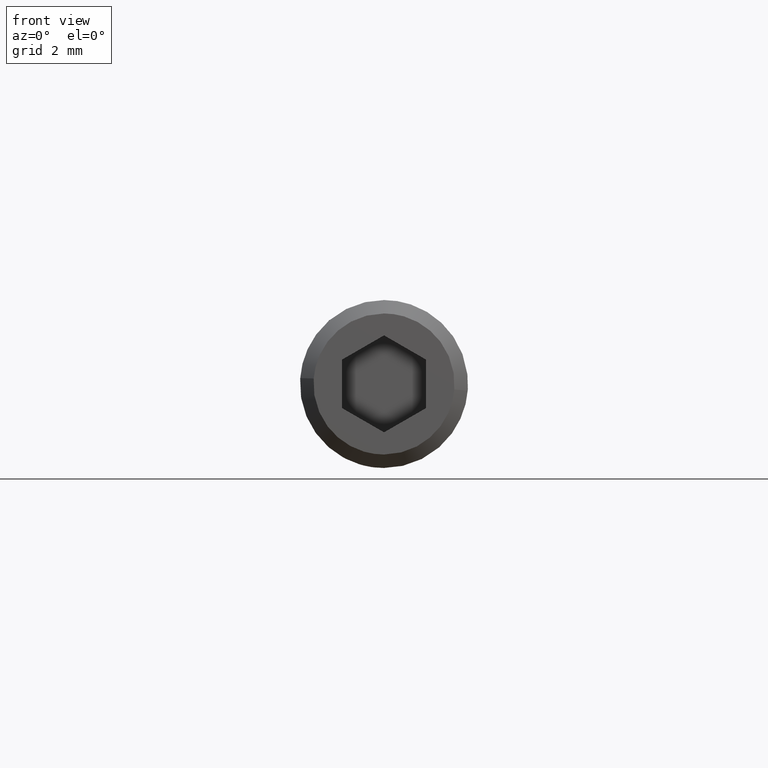
[diagram: clean part render]
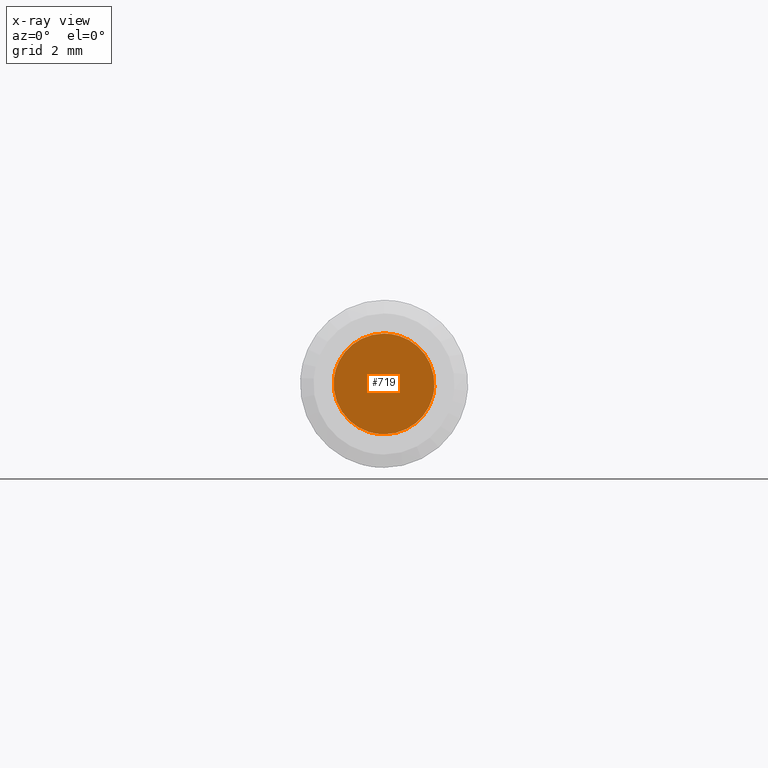
[diagram: x-ray — body ghosted, one internal face saturated and labeled with its STEP entity id]
A machine part, front view, then the same camera in x-ray: the body is ghosted and one INTERNAL B-rep face — a face not visible from any outside direction — is saturated and labeled: STEP entity #719.
In plain terms, the highlighted face is a freeform B-spline surface patch.
Its self-contained STEP definition (entity closure, byte-faithful):
#66=CARTESIAN_POINT('',(-1.489514289544436,-3.0,0.177051351994086));
#67=VERTEX_POINT('',#66);
#68=CARTESIAN_POINT('',(0.0,-3.0,-1.500000000000000));
#69=VERTEX_POINT('',#68);
#70=CARTESIAN_POINT('',(-1.489514289544436,-3.000000000000000,0.177051351994086));
#71=CARTESIAN_POINT('',(-1.500000000000000,-2.999999999999999,0.088836179486908));
#72=CARTESIAN_POINT('',(-1.500000000000000,-3.0,0.0));
#73=CARTESIAN_POINT('',(-1.500000000000000,-3.0,-1.500000000000000));
#74=CARTESIAN_POINT('',(0.0,-3.0,-1.500000000000000));
#82=(BOUNDED_CURVE()B_SPLINE_CURVE(2,(#70,#71,#72,#73,#74),.UNSPECIFIED.,.F.,.U.)B_SPLINE_CURVE_WITH_KNOTS((3,2,3),(0.229562473513614,0.250000000000000,0.500000000000000),.UNSPECIFIED.)CURVE()GEOMETRIC_REPRESENTATION_ITEM()RATIONAL_B_SPLINE_CURVE((0.956026754183906,0.976055948331269,1.0,0.707106781186548,1.0))REPRESENTATION_ITEM(''));
#83=EDGE_CURVE('',#67,#69,#82,.T.);
#85=CARTESIAN_POINT('',(1.497202197631061,-3.0,-0.091572809330721));
#86=VERTEX_POINT('',#85);
#87=CARTESIAN_POINT('',(0.0,-3.0,-1.500000000000000));
#88=CARTESIAN_POINT('',(1.411059100304847,-3.000000000000000,-1.500000000000000));
#89=CARTESIAN_POINT('',(1.497202197631061,-3.000000000000000,-0.091572809330721));
#97=(BOUNDED_CURVE()B_SPLINE_CURVE(2,(#87,#88,#89),.UNSPECIFIED.,.F.,.U.)B_SPLINE_CURVE_WITH_KNOTS((3,3),(0.500000000000000,0.739332962235415),.UNSPECIFIED.)CURVE()GEOMETRIC_REPRESENTATION_ITEM()RATIONAL_B_SPLINE_CURVE((1.0,0.719603993290844,0.976072041659156))REPRESENTATION_ITEM(''));
#98=EDGE_CURVE('',#69,#86,#97,.T.);
#165=CARTESIAN_POINT('',(0.0,-3.0,1.500000000000000));
#166=VERTEX_POINT('',#165);
#167=CARTESIAN_POINT('',(0.0,-3.0,1.500000000000000));
#168=CARTESIAN_POINT('',(-1.332261788910932,-3.0,1.500000000000000));
#169=CARTESIAN_POINT('',(-1.489514289544436,-3.000000000000000,0.177051351994086));
#177=(BOUNDED_CURVE()B_SPLINE_CURVE(2,(#167,#168,#169),.UNSPECIFIED.,.F.,.U.)B_SPLINE_CURVE_WITH_KNOTS((3,3),(0.0,0.229562473513614),.UNSPECIFIED.)CURVE()GEOMETRIC_REPRESENTATION_ITEM()RATIONAL_B_SPLINE_CURVE((1.0,0.731050832855279,0.956026754183906))REPRESENTATION_ITEM(''));
#178=EDGE_CURVE('',#166,#67,#177,.T.);
#212=CARTESIAN_POINT('',(1.497202197631061,-3.0,-0.091572809330721));
#213=CARTESIAN_POINT('',(1.500000000000000,-3.000000000000000,-0.045829144976398));
#214=CARTESIAN_POINT('',(1.500000000000000,-3.0,0.0));
#215=CARTESIAN_POINT('',(1.500000000000000,-3.0,1.500000000000000));
#216=CARTESIAN_POINT('',(0.0,-3.0,1.500000000000000));
#224=(BOUNDED_CURVE()B_SPLINE_CURVE(2,(#212,#213,#214,#215,#216),.UNSPECIFIED.,.F.,.U.)B_SPLINE_CURVE_WITH_KNOTS((3,2,3),(0.739332962235414,0.750000000000000,1.0),.UNSPECIFIED.)CURVE()GEOMETRIC_REPRESENTATION_ITEM()RATIONAL_B_SPLINE_CURVE((0.976072041659155,0.987502787895703,1.0,0.707106781186548,1.0))REPRESENTATION_ITEM(''));
#225=EDGE_CURVE('',#86,#166,#224,.T.);
#708=CARTESIAN_POINT('',(-1.649822796803254,-3.0,1.649849994185418));
#709=CARTESIAN_POINT('',(1.649813489537972,-3.0,1.649849994185418));
#710=CARTESIAN_POINT('',(-1.649822796803254,-3.0,-1.649850074651688));
#711=CARTESIAN_POINT('',(1.649813489537972,-3.0,-1.649850074651688));
#712=B_SPLINE_SURFACE_WITH_KNOTS('',1,1,((#708,#710),(#709,#711)),.UNSPECIFIED.,.F.,.F.,.U.,(2,2),(2,2),(0.0,3.299636286341225),(0.0,3.299700068837106),.UNSPECIFIED.);
#713=ORIENTED_EDGE('',*,*,#225,.F.);
#714=ORIENTED_EDGE('',*,*,#98,.F.);
#715=ORIENTED_EDGE('',*,*,#83,.F.);
#716=ORIENTED_EDGE('',*,*,#178,.F.);
#717=EDGE_LOOP('',(#713,#714,#715,#716));
#718=FACE_OUTER_BOUND('',#717,.T.);
#719=ADVANCED_FACE('',(#718),#712,.T.);